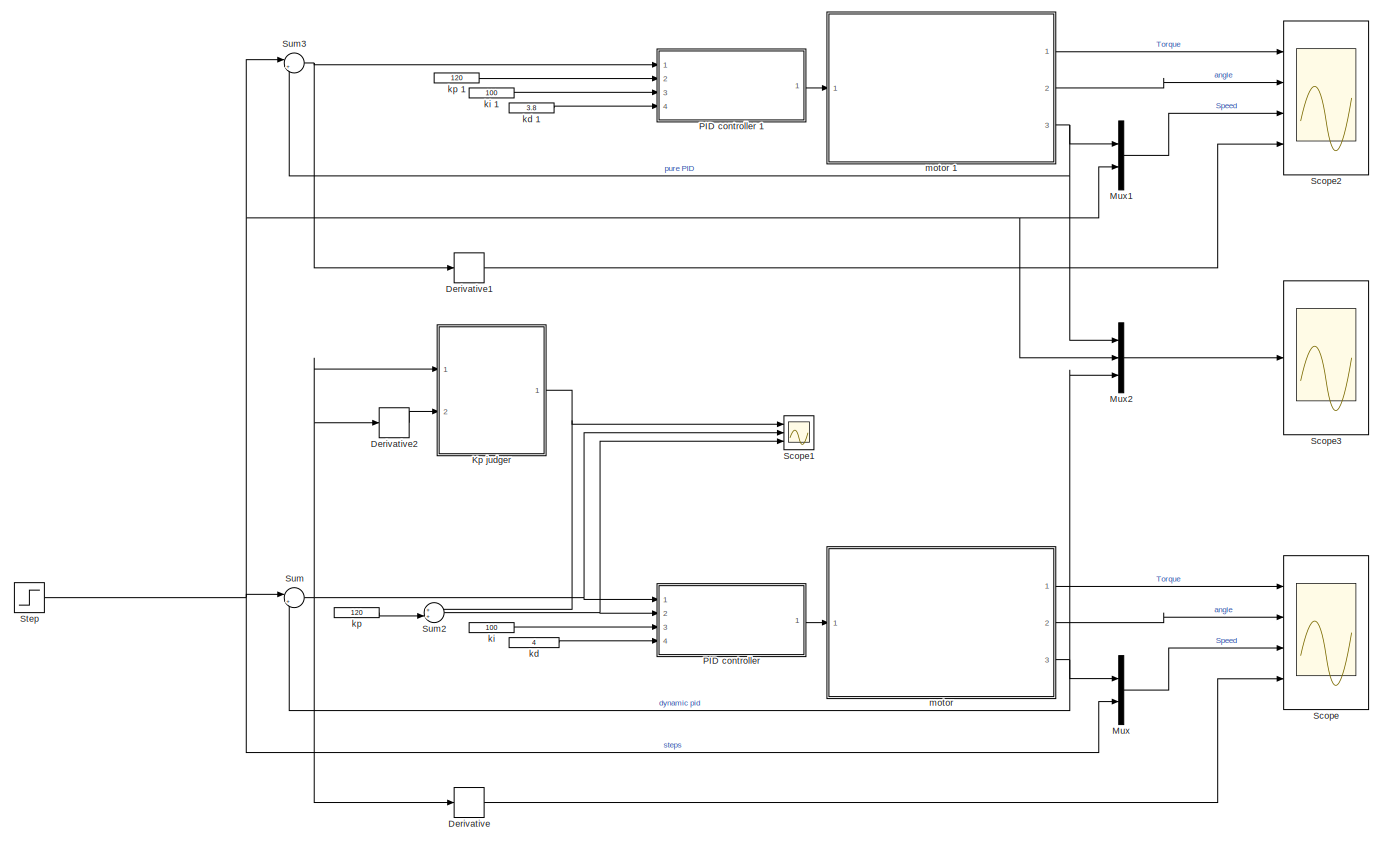
[diagram: root canvas - part 1/1, most of the canvas]
MODEL slx_0358c9321982
KIND model
CONFIG AbsTol = auto
CONFIG FixedStep = auto
CONFIG MaxStep = auto
CONFIG MinStep = auto
CONFIG RelTol = 1e-3
CONFIG SampleTimeConstraint = Unconstrained
CONFIG Solver = VariableStepAuto
CONFIG SolverMode = Auto
CONFIG SolverName = VariableStepAuto
CONFIG StartTime = 0.0
CONFIG StopTime = 10.0
BLOCK [Derivative] Derivative
BLOCK [Derivative] Derivative1
BLOCK [Derivative] Derivative2
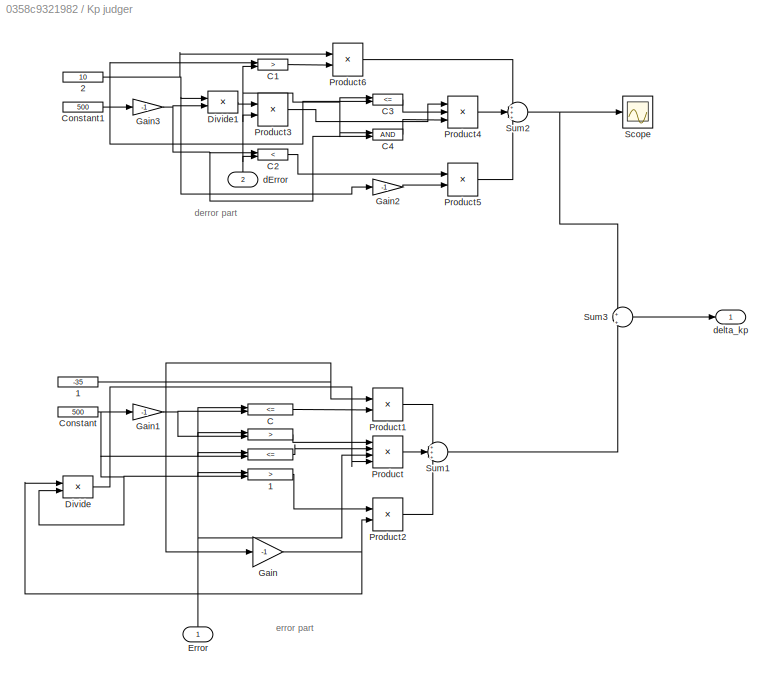
BLOCK [SubSystem] Kp judger 
  Ports = [2, 1]
  RequestExecContextInheritance = off
  Variant = off
BLOCK [RelationalOperator] Kp judger / 
  InputSameDT = off
  Operator = >
  OutDataTypeStr = boolean
  Ports = [2, 1]
BLOCK [RelationalOperator] Kp judger / 1
  InputSameDT = off
  Operator = >
  OutDataTypeStr = boolean
  Ports = [2, 1]
BLOCK [Constant] Kp judger /1 
  Value = -35
BLOCK [Constant] Kp judger /2 
  Value = 10
BLOCK [RelationalOperator] Kp judger /C 
  InputSameDT = off
  Operator = <=
  OutDataTypeStr = boolean
  Ports = [2, 1]
BLOCK [RelationalOperator] Kp judger /C1
  InputSameDT = off
  Operator = >
  OutDataTypeStr = boolean
  Ports = [2, 1]
BLOCK [RelationalOperator] Kp judger /C2
  InputSameDT = off
  Operator = <
  OutDataTypeStr = boolean
  Ports = [2, 1]
BLOCK [RelationalOperator] Kp judger /C3
  InputSameDT = off
  Operator = <=
  OutDataTypeStr = boolean
  Ports = [2, 1]
BLOCK [RelationalOperator] Kp judger /C4
  InputSameDT = off
  OutDataTypeStr = boolean
  Ports = [2, 1]
BLOCK [Constant] Kp judger /Constant
  Value = 500
BLOCK [Constant] Kp judger /Constant1
  Value = 500
BLOCK [Product] Kp judger /Divide
  InputSameDT = off
  Inputs = */
  OutDataTypeStr = Inherit: Inherit via internal rule
  Ports = [2, 1]
  RndMeth = Floor
  SaturateOnIntegerOverflow = off
BLOCK [Product] Kp judger /Divide1
  InputSameDT = off
  Inputs = */
  OutDataTypeStr = Inherit: Inherit via internal rule
  Ports = [2, 1]
  RndMeth = Floor
  SaturateOnIntegerOverflow = off
BLOCK [Inport] Kp judger /Error
  IconDisplay = Port number
BLOCK [Gain] Kp judger /Gain
  Gain = -1
  OutDataTypeStr = Inherit: Inherit via internal rule
  ParamDataTypeStr = Inherit: Inherit via internal rule
  SaturateOnIntegerOverflow = off
BLOCK [Gain] Kp judger /Gain1
  Gain = -1
  OutDataTypeStr = Inherit: Inherit via internal rule
  ParamDataTypeStr = Inherit: Inherit via internal rule
  SaturateOnIntegerOverflow = off
BLOCK [Gain] Kp judger /Gain2
  Gain = -1
  OutDataTypeStr = Inherit: Inherit via internal rule
  ParamDataTypeStr = Inherit: Inherit via internal rule
  SaturateOnIntegerOverflow = off
BLOCK [Gain] Kp judger /Gain3
  Gain = -1
  OutDataTypeStr = Inherit: Inherit via internal rule
  ParamDataTypeStr = Inherit: Inherit via internal rule
  SaturateOnIntegerOverflow = off
BLOCK [Product] Kp judger /Product
  InputSameDT = off
  Inputs = 4
  OutDataTypeStr = Inherit: Inherit via internal rule
  Ports = [4, 1]
  RndMeth = Floor
  SaturateOnIntegerOverflow = off
BLOCK [Product] Kp judger /Product1
  InputSameDT = off
  OutDataTypeStr = Inherit: Inherit via internal rule
  Ports = [2, 1]
  RndMeth = Floor
  SaturateOnIntegerOverflow = off
BLOCK [Product] Kp judger /Product2
  InputSameDT = off
  OutDataTypeStr = Inherit: Inherit via internal rule
  Ports = [2, 1]
  RndMeth = Floor
  SaturateOnIntegerOverflow = off
BLOCK [Product] Kp judger /Product3
  InputSameDT = off
  OutDataTypeStr = Inherit: Inherit via internal rule
  Ports = [2, 1]
  RndMeth = Floor
  SaturateOnIntegerOverflow = off
BLOCK [Product] Kp judger /Product4
  InputSameDT = off
  Inputs = 3
  OutDataTypeStr = Inherit: Inherit via internal rule
  Ports = [3, 1]
  RndMeth = Floor
  SaturateOnIntegerOverflow = off
BLOCK [Product] Kp judger /Product5
  InputSameDT = off
  OutDataTypeStr = Inherit: Inherit via internal rule
  Ports = [2, 1]
  RndMeth = Floor
  SaturateOnIntegerOverflow = off
BLOCK [Product] Kp judger /Product6
  InputSameDT = off
  OutDataTypeStr = Inherit: Inherit via internal rule
  Ports = [2, 1]
  RndMeth = Floor
  SaturateOnIntegerOverflow = off
BLOCK [Scope] Kp judger /Scope
  Ports = [1]
  ScopeSpecificationString = Simulink.scopes.TimeScopeBlockCfg('CurrentConfiguration', extmgr.ConfigurationSet(extmgr.Configuration('Core','General UI',true),extmgr.Configuration('Core','Source UI',true),extmgr.Configuration('Sources','WiredSimulink',true,'DataLoggingVariableName','ScopeData4'),extmgr.Configuration('Visuals','Time Domain',true,'SerializedDisplays',{struct('MinYLimReal','-12.5','MaxYLimReal','12.5','YLabelReal...<+1374ch>
BLOCK [Sum] Kp judger /Sum1
  IconShape = round
  InputSameDT = off
  Inputs = +++
  OutDataTypeStr = Inherit: Inherit via internal rule
  Ports = [3, 1]
  SaturateOnIntegerOverflow = off
BLOCK [Sum] Kp judger /Sum2
  IconShape = round
  InputSameDT = off
  Inputs = +++
  OutDataTypeStr = Inherit: Inherit via internal rule
  Ports = [3, 1]
  SaturateOnIntegerOverflow = off
BLOCK [Sum] Kp judger /Sum3
  IconShape = round
  InputSameDT = off
  Inputs = +|+
  OutDataTypeStr = Inherit: Inherit via internal rule
  Ports = [2, 1]
  SaturateOnIntegerOverflow = off
BLOCK [Inport] Kp judger /dError
  IconDisplay = Port number
  Port = 2
BLOCK [Outport] Kp judger /delta_kp 
  IconDisplay = Port number
BLOCK [Mux] Mux
  DisplayOption = bar
  Inputs = 2
  Ports = [2, 1]
BLOCK [Mux] Mux1
  DisplayOption = bar
  Inputs = 2
  Ports = [2, 1]
BLOCK [Mux] Mux2
  DisplayOption = bar
  Inputs = 3
  Ports = [3, 1]
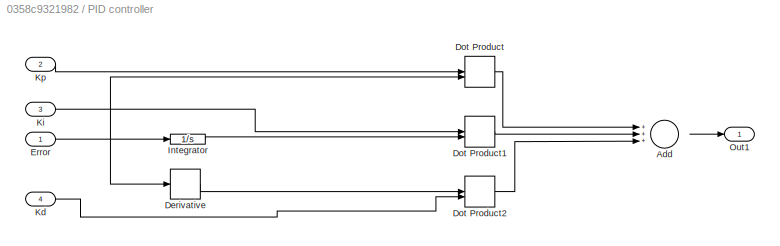
BLOCK [SubSystem] PID controller 
  Ports = [4, 1]
  RequestExecContextInheritance = off
  Variant = off
BLOCK [Sum] PID controller /Add
  InputSameDT = off
  Inputs = +++
  OutDataTypeStr = Inherit: Inherit via internal rule
  Ports = [3, 1]
  SaturateOnIntegerOverflow = off
BLOCK [Derivative] PID controller /Derivative
BLOCK [DotProduct] PID controller /Dot Product
  OutDataTypeStr = Inherit: Inherit via internal rule
BLOCK [DotProduct] PID controller /Dot Product1
  OutDataTypeStr = Inherit: Inherit via internal rule
BLOCK [DotProduct] PID controller /Dot Product2
  OutDataTypeStr = Inherit: Inherit via internal rule
BLOCK [Inport] PID controller /Error 
  IconDisplay = Port number
BLOCK [Integrator] PID controller /Integrator
  Ports = [1, 1]
BLOCK [Inport] PID controller /Kd
  IconDisplay = Port number
  Port = 4
BLOCK [Inport] PID controller /Ki 
  IconDisplay = Port number
  Port = 3
BLOCK [Inport] PID controller /Kp 
  IconDisplay = Port number
  Port = 2
BLOCK [Outport] PID controller /Out1
  IconDisplay = Port number
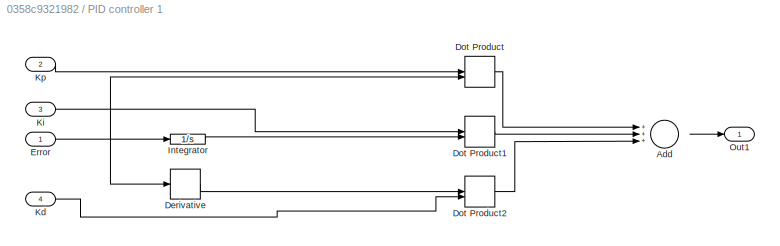
BLOCK [SubSystem] PID controller 1
  Ports = [4, 1]
  RequestExecContextInheritance = off
  Variant = off
BLOCK [Sum] PID controller 1/Add
  InputSameDT = off
  Inputs = +++
  OutDataTypeStr = Inherit: Inherit via internal rule
  Ports = [3, 1]
  SaturateOnIntegerOverflow = off
BLOCK [Derivative] PID controller 1/Derivative
BLOCK [DotProduct] PID controller 1/Dot Product
  OutDataTypeStr = Inherit: Inherit via internal rule
BLOCK [DotProduct] PID controller 1/Dot Product1
  OutDataTypeStr = Inherit: Inherit via internal rule
BLOCK [DotProduct] PID controller 1/Dot Product2
  OutDataTypeStr = Inherit: Inherit via internal rule
BLOCK [Inport] PID controller 1/Error 
  IconDisplay = Port number
BLOCK [Integrator] PID controller 1/Integrator
  Ports = [1, 1]
BLOCK [Inport] PID controller 1/Kd
  IconDisplay = Port number
  Port = 4
BLOCK [Inport] PID controller 1/Ki 
  IconDisplay = Port number
  Port = 3
BLOCK [Inport] PID controller 1/Kp 
  IconDisplay = Port number
  Port = 2
BLOCK [Outport] PID controller 1/Out1
  IconDisplay = Port number
BLOCK [Scope] Scope
  NumInputPorts = 4
  Ports = [4]
  ScopeSpecificationString = Simulink.scopes.TimeScopeBlockCfg('CurrentConfiguration', extmgr.ConfigurationSet(extmgr.Configuration('Core','General UI',true),extmgr.Configuration('Core','Source UI',true),extmgr.Configuration('Sources','WiredSimulink',true),extmgr.Configuration('Visuals','Time Domain',true,'SerializedDisplays',{struct('MinYLimReal','-2129.69128','MaxYLimReal','11237.76834','YLabelReal','','MinYLimMag','  0.000...<+3493ch>
BLOCK [Scope] Scope1
  NumInputPorts = 3
  Ports = [3]
  ScopeSpecificationString = Simulink.scopes.TimeScopeBlockCfg('CurrentConfiguration', extmgr.ConfigurationSet(extmgr.Configuration('Core','General UI',true),extmgr.Configuration('Core','Source UI',true),extmgr.Configuration('Sources','WiredSimulink',true,'DataLoggingVariableName','ScopeData1'),extmgr.Configuration('Visuals','Time Domain',true,'SerializedDisplays',{struct('MinYLimReal','-3.54819','MaxYLimReal','27.01631','YLa...<+2672ch>
BLOCK [Scope] Scope2
  NumInputPorts = 4
  Ports = [4]
  ScopeSpecificationString = Simulink.scopes.TimeScopeBlockCfg('CurrentConfiguration', extmgr.ConfigurationSet(extmgr.Configuration('Core','General UI',true),extmgr.Configuration('Core','Source UI',true),extmgr.Configuration('Sources','WiredSimulink',true,'DataLoggingVariableName','ScopeData2'),extmgr.Configuration('Visuals','Time Domain',true,'SerializedDisplays',{struct('MinYLimReal','-2129.69128','MaxYLimReal','11237.76834...<+3532ch>
BLOCK [Scope] Scope3
  Ports = [1]
  ScopeSpecificationString = Simulink.scopes.TimeScopeBlockCfg('CurrentConfiguration', extmgr.ConfigurationSet(extmgr.Configuration('Core','General UI',true),extmgr.Configuration('Core','Source UI',true),extmgr.Configuration('Sources','WiredSimulink',true,'DataLoggingVariableName','ScopeData3'),extmgr.Configuration('Visuals','Time Domain',true,'SerializedDisplays',{struct('MinYLimReal','-25.18063','MaxYLimReal','226.62571','Y...<+1566ch>
BLOCK [Step] Step
  After = 200
  SampleTime = 0
  Time = 5
BLOCK [Sum] Sum
  IconShape = round
  InputSameDT = off
  Inputs = |+-
  OutDataTypeStr = Inherit: Inherit via internal rule
  Ports = [2, 1]
  SaturateOnIntegerOverflow = off
BLOCK [Sum] Sum2
  IconShape = round
  InputSameDT = off
  Inputs = ++|
  OutDataTypeStr = Inherit: Inherit via internal rule
  Ports = [2, 1]
  SaturateOnIntegerOverflow = off
BLOCK [Sum] Sum3
  IconShape = round
  InputSameDT = off
  Inputs = |+-
  OutDataTypeStr = Inherit: Inherit via internal rule
  Ports = [2, 1]
  SaturateOnIntegerOverflow = off
BLOCK [Constant] kd 
  Value = 4
BLOCK [Constant] kd 1
  Value = 3.8
BLOCK [Constant] ki 
  Value = 100
BLOCK [Constant] ki 1
  Value = 100
BLOCK [Constant] kp 
  Value = 120
BLOCK [Constant] kp 1
  Value = 120
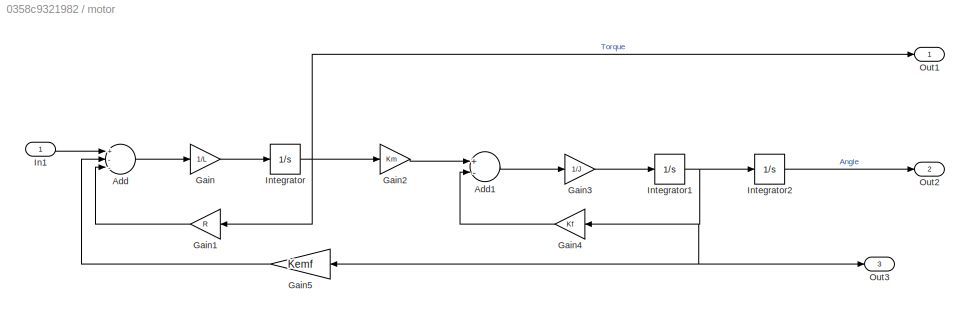
BLOCK [SubSystem] motor 
  Ports = [1, 3]
  RequestExecContextInheritance = off
  Variant = off
BLOCK [Sum] motor /Add
  InputSameDT = off
  Inputs = +--
  OutDataTypeStr = Inherit: Inherit via internal rule
  Ports = [3, 1]
  SaturateOnIntegerOverflow = off
BLOCK [Sum] motor /Add1
  InputSameDT = off
  Inputs = +-
  OutDataTypeStr = Inherit: Inherit via internal rule
  Ports = [2, 1]
  SaturateOnIntegerOverflow = off
BLOCK [Gain] motor /Gain
  Gain = 1/L
  OutDataTypeStr = Inherit: Inherit via internal rule
  ParamDataTypeStr = Inherit: Inherit via internal rule
  SaturateOnIntegerOverflow = off
BLOCK [Gain] motor /Gain1
  Gain = R
  OutDataTypeStr = Inherit: Inherit via internal rule
  ParamDataTypeStr = Inherit: Inherit via internal rule
  SaturateOnIntegerOverflow = off
BLOCK [Gain] motor /Gain2
  Gain = Km
  OutDataTypeStr = Inherit: Inherit via internal rule
  ParamDataTypeStr = Inherit: Inherit via internal rule
  SaturateOnIntegerOverflow = off
BLOCK [Gain] motor /Gain3
  Gain = 1/J
  OutDataTypeStr = Inherit: Inherit via internal rule
  ParamDataTypeStr = Inherit: Inherit via internal rule
  SaturateOnIntegerOverflow = off
BLOCK [Gain] motor /Gain4
  Gain = Kf
  OutDataTypeStr = Inherit: Inherit via internal rule
  ParamDataTypeStr = Inherit: Inherit via internal rule
  SaturateOnIntegerOverflow = off
BLOCK [Gain] motor /Gain5
  Gain = Kemf
  OutDataTypeStr = Inherit: Inherit via internal rule
  ParamDataTypeStr = Inherit: Inherit via internal rule
  SaturateOnIntegerOverflow = off
BLOCK [Inport] motor /In1
  IconDisplay = Port number
BLOCK [Integrator] motor /Integrator
  Ports = [1, 1]
BLOCK [Integrator] motor /Integrator1
  Ports = [1, 1]
BLOCK [Integrator] motor /Integrator2
  Ports = [1, 1]
BLOCK [Outport] motor /Out1
  IconDisplay = Port number
BLOCK [Outport] motor /Out2
  IconDisplay = Port number
  Port = 2
BLOCK [Outport] motor /Out3
  IconDisplay = Port number
  Port = 3
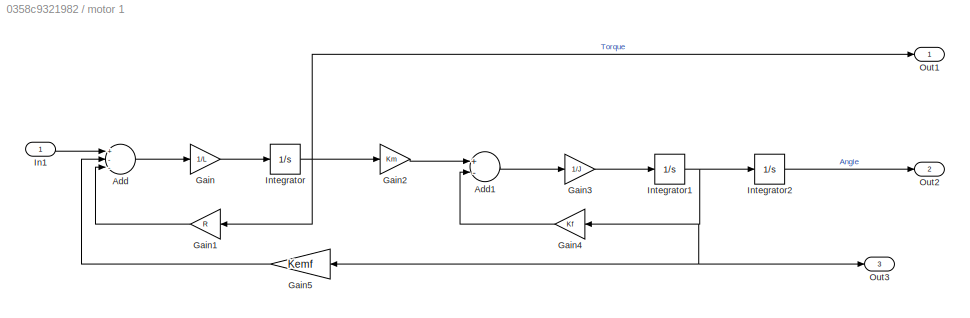
BLOCK [SubSystem] motor 1
  Ports = [1, 3]
  RequestExecContextInheritance = off
  Variant = off
BLOCK [Sum] motor 1/Add
  InputSameDT = off
  Inputs = +--
  OutDataTypeStr = Inherit: Inherit via internal rule
  Ports = [3, 1]
  SaturateOnIntegerOverflow = off
BLOCK [Sum] motor 1/Add1
  InputSameDT = off
  Inputs = +-
  OutDataTypeStr = Inherit: Inherit via internal rule
  Ports = [2, 1]
  SaturateOnIntegerOverflow = off
BLOCK [Gain] motor 1/Gain
  Gain = 1/L
  OutDataTypeStr = Inherit: Inherit via internal rule
  ParamDataTypeStr = Inherit: Inherit via internal rule
  SaturateOnIntegerOverflow = off
BLOCK [Gain] motor 1/Gain1
  Gain = R
  OutDataTypeStr = Inherit: Inherit via internal rule
  ParamDataTypeStr = Inherit: Inherit via internal rule
  SaturateOnIntegerOverflow = off
BLOCK [Gain] motor 1/Gain2
  Gain = Km
  OutDataTypeStr = Inherit: Inherit via internal rule
  ParamDataTypeStr = Inherit: Inherit via internal rule
  SaturateOnIntegerOverflow = off
BLOCK [Gain] motor 1/Gain3
  Gain = 1/J
  OutDataTypeStr = Inherit: Inherit via internal rule
  ParamDataTypeStr = Inherit: Inherit via internal rule
  SaturateOnIntegerOverflow = off
BLOCK [Gain] motor 1/Gain4
  Gain = Kf
  OutDataTypeStr = Inherit: Inherit via internal rule
  ParamDataTypeStr = Inherit: Inherit via internal rule
  SaturateOnIntegerOverflow = off
BLOCK [Gain] motor 1/Gain5
  Gain = Kemf
  OutDataTypeStr = Inherit: Inherit via internal rule
  ParamDataTypeStr = Inherit: Inherit via internal rule
  SaturateOnIntegerOverflow = off
BLOCK [Inport] motor 1/In1
  IconDisplay = Port number
BLOCK [Integrator] motor 1/Integrator
  Ports = [1, 1]
BLOCK [Integrator] motor 1/Integrator1
  Ports = [1, 1]
BLOCK [Integrator] motor 1/Integrator2
  Ports = [1, 1]
BLOCK [Outport] motor 1/Out1
  IconDisplay = Port number
BLOCK [Outport] motor 1/Out2
  IconDisplay = Port number
  Port = 2
BLOCK [Outport] motor 1/Out3
  IconDisplay = Port number
  Port = 3
ANNOTATION Kp judger : derror part
ANNOTATION Kp judger : error part
LINE Derivative1:1 -> Scope2:4
LINE Derivative2:1 -> Kp judger :2
LINE Derivative:1 -> Scope:4
LINE Kp judger / 1:1 -> Kp judger /Product2:1
NET Kp judger / :1 -> Kp judger /Product:1, Kp judger /Product:2
NET Kp judger /1 :1 -> Kp judger /Gain:1, Kp judger /Product1:1
NET Kp judger /2 :1 -> Kp judger /Divide1:1, Kp judger /Gain2:1, Kp judger /Product6:1
LINE Kp judger /C :1 -> Kp judger /Product1:2
LINE Kp judger /C1:1 -> Kp judger /Product6:2
LINE Kp judger /C2:1 -> Kp judger /Product5:1
LINE Kp judger /C3:1 -> Kp judger /Product4:2
LINE Kp judger /C4:1 -> Kp judger /Product4:3
NET Kp judger /Constant1:1 -> Kp judger /C1:1, Kp judger /C3:2, Kp judger /Gain3:1
NET Kp judger /Constant:1 -> Kp judger / 1:2, Kp judger / :2, Kp judger /Divide:2, Kp judger /Gain1:1
LINE Kp judger /Divide1:1 -> Kp judger /Product3:1
LINE Kp judger /Divide:1 -> Kp judger /Product:4
NET Kp judger /Error:1 -> Kp judger / 1:1, Kp judger / :1, Kp judger /C :1, Kp judger /Product:3
NET Kp judger /Gain1:1 -> Kp judger / :2, Kp judger /C :2
LINE Kp judger /Gain2:1 -> Kp judger /Product5:2
NET Kp judger /Gain3:1 -> Kp judger /C2:1, Kp judger /C4:2, Kp judger /Divide1:2
NET Kp judger /Gain:1 -> Kp judger /Divide:1, Kp judger /Product2:2
LINE Kp judger /Product1:1 -> Kp judger /Sum1:1
LINE Kp judger /Product2:1 -> Kp judger /Sum1:3
LINE Kp judger /Product3:1 -> Kp judger /Product4:1
LINE Kp judger /Product4:1 -> Kp judger /Sum2:2
LINE Kp judger /Product5:1 -> Kp judger /Sum2:3
LINE Kp judger /Product6:1 -> Kp judger /Sum2:1
LINE Kp judger /Product:1 -> Kp judger /Sum1:2
LINE Kp judger /Sum1:1 -> Kp judger /Sum3:2
NET Kp judger /Sum2:1 -> Kp judger /Scope:1, Kp judger /Sum3:1
LINE Kp judger /Sum3:1 -> Kp judger /delta_kp :1
NET Kp judger /dError:1 -> Kp judger /C1:2, Kp judger /C2:2, Kp judger /C3:1, Kp judger /C4:1, Kp judger /Product3:2
NET Kp judger :1 -> Scope1:1, Sum2:1
LINE Mux1:1 -> Scope2:3
LINE Mux2:1 -> Scope3:1
LINE Mux:1 -> Scope:3
LINE PID controller /Add:1 -> PID controller /Out1:1
LINE PID controller /Derivative:1 -> PID controller /Dot Product2:1
LINE PID controller /Dot Product1:1 -> PID controller /Add:2
LINE PID controller /Dot Product2:1 -> PID controller /Add:3
LINE PID controller /Dot Product:1 -> PID controller /Add:1
NET PID controller /Error :1 -> PID controller /Derivative:1, PID controller /Dot Product:2, PID controller /Integrator:1
LINE PID controller /Integrator:1 -> PID controller /Dot Product1:2
LINE PID controller /Kd:1 -> PID controller /Dot Product2:2
LINE PID controller /Ki :1 -> PID controller /Dot Product1:1
LINE PID controller /Kp :1 -> PID controller /Dot Product:1
LINE PID controller 1/Add:1 -> PID controller 1/Out1:1
LINE PID controller 1/Derivative:1 -> PID controller 1/Dot Product2:1
LINE PID controller 1/Dot Product1:1 -> PID controller 1/Add:2
LINE PID controller 1/Dot Product2:1 -> PID controller 1/Add:3
LINE PID controller 1/Dot Product:1 -> PID controller 1/Add:1
NET PID controller 1/Error :1 -> PID controller 1/Derivative:1, PID controller 1/Dot Product:2, PID controller 1/Integrator:1
LINE PID controller 1/Integrator:1 -> PID controller 1/Dot Product1:2
LINE PID controller 1/Kd:1 -> PID controller 1/Dot Product2:2
LINE PID controller 1/Ki :1 -> PID controller 1/Dot Product1:1
LINE PID controller 1/Kp :1 -> PID controller 1/Dot Product:1
LINE PID controller 1:1 -> motor 1:1
LINE PID controller :1 -> motor :1
NET Step:1 -> Mux1:2, Mux2:2, Mux:2, Sum3:1, Sum:1
NET Sum2:1 -> PID controller :2, Scope1:3
NET Sum3:1 -> Derivative1:1, PID controller 1:1
NET Sum:1 -> Derivative2:1, Derivative:1, Kp judger :1, PID controller :1, Scope1:2
LINE kd 1:1 -> PID controller 1:4
LINE kd :1 -> PID controller :4
LINE ki 1:1 -> PID controller 1:3
LINE ki :1 -> PID controller :3
LINE kp 1:1 -> PID controller 1:2
LINE kp :1 -> Sum2:2
LINE motor /Add1:1 -> motor /Gain3:1
LINE motor /Add:1 -> motor /Gain:1
LINE motor /Gain1:1 -> motor /Add:3
LINE motor /Gain2:1 -> motor /Add1:1
LINE motor /Gain3:1 -> motor /Integrator1:1
LINE motor /Gain4:1 -> motor /Add1:2
LINE motor /Gain5:1 -> motor /Add:2
LINE motor /Gain:1 -> motor /Integrator:1
LINE motor /In1:1 -> motor /Add:1
NET motor /Integrator1:1 -> motor /Gain4:1, motor /Gain5:1, motor /Integrator2:1, motor /Out3:1
LINE motor /Integrator2:1 -> motor /Out2:1
NET motor /Integrator:1 -> motor /Gain1:1, motor /Gain2:1, motor /Out1:1
LINE motor 1/Add1:1 -> motor 1/Gain3:1
LINE motor 1/Add:1 -> motor 1/Gain:1
LINE motor 1/Gain1:1 -> motor 1/Add:3
LINE motor 1/Gain2:1 -> motor 1/Add1:1
LINE motor 1/Gain3:1 -> motor 1/Integrator1:1
LINE motor 1/Gain4:1 -> motor 1/Add1:2
LINE motor 1/Gain5:1 -> motor 1/Add:2
LINE motor 1/Gain:1 -> motor 1/Integrator:1
LINE motor 1/In1:1 -> motor 1/Add:1
NET motor 1/Integrator1:1 -> motor 1/Gain4:1, motor 1/Gain5:1, motor 1/Integrator2:1, motor 1/Out3:1
LINE motor 1/Integrator2:1 -> motor 1/Out2:1
NET motor 1/Integrator:1 -> motor 1/Gain1:1, motor 1/Gain2:1, motor 1/Out1:1
LINE motor 1:1 -> Scope2:1
LINE motor 1:2 -> Scope2:2
NET motor 1:3 -> Mux1:1, Mux2:1, Sum3:2
LINE motor :1 -> Scope:1
LINE motor :2 -> Scope:2
NET motor :3 -> Mux2:3, Mux:1, Sum:2
note: NET lines group one-source signal fan-out (src -> all destinations, sorted); 1:1 wires keep LINE
